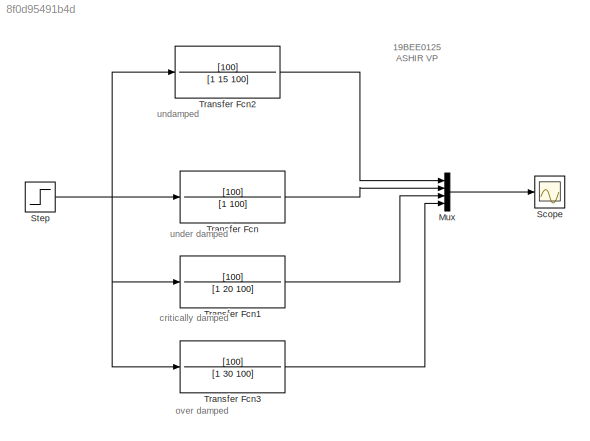
MODEL slx_8f0d95491b4d
KIND model
CONFIG AbsTol = auto
CONFIG EnableMultiTasking = off
CONFIG FixedStep = auto
CONFIG MaxStep = auto
CONFIG MinStep = auto
CONFIG RelTol = 1e-3
CONFIG SampleTimeConstraint = Unconstrained
CONFIG SolverName = VariableStepAuto
CONFIG StartTime = 0.0
CONFIG StopTime = 10.0
BLOCK [Mux] Mux
  DisplayOption = bar
  Ports = [4, 1]
BLOCK [Scope] Scope
  Floating = off
  NumInputPorts = 1
  Ports = [1]
  ScopeSpecificationString = Simulink.scopes.TimeScopeBlockCfg('CurrentConfiguration', extmgr.ConfigurationSet(extmgr.Configuration('Core','General UI',true),extmgr.Configuration('Core','Source UI',true),extmgr.Configuration('Sources','WiredSimulink',true,'DataLogging',true,'DataLoggingVariableName','X','DataLoggingSaveFormat','Array'),extmgr.Configuration('Visuals','Time Domain',true,'SerializedDisplays',{struct('MinYLimReal...<+1427ch>
BLOCK [Step] Step
  SampleTime = 0
  Time = 0
BLOCK [TransferFcn] Transfer Fcn
  Denominator = [1 100]
  Numerator = [100]
BLOCK [TransferFcn] Transfer Fcn1
  Denominator = [1 20 100]
  Numerator = [100]
BLOCK [TransferFcn] Transfer Fcn2
  Denominator = [1 15 100]
  Numerator = [100]
BLOCK [TransferFcn] Transfer Fcn3
  Denominator = [1 30 100]
  Numerator = [100]
ANNOTATION (root): 19BEE0125 ASHIR VP
ANNOTATION (root): critically damped
ANNOTATION (root): over damped
ANNOTATION (root): undamped
ANNOTATION (root): under damped
LINE Mux:1 -> Scope:1
NET Step:1 -> Transfer Fcn1:1, Transfer Fcn2:1, Transfer Fcn3:1, Transfer Fcn:1
LINE Transfer Fcn1:1 -> Mux:3
LINE Transfer Fcn2:1 -> Mux:1
LINE Transfer Fcn3:1 -> Mux:4
LINE Transfer Fcn:1 -> Mux:2
note: NET lines group one-source signal fan-out (src -> all destinations, sorted); 1:1 wires keep LINE
